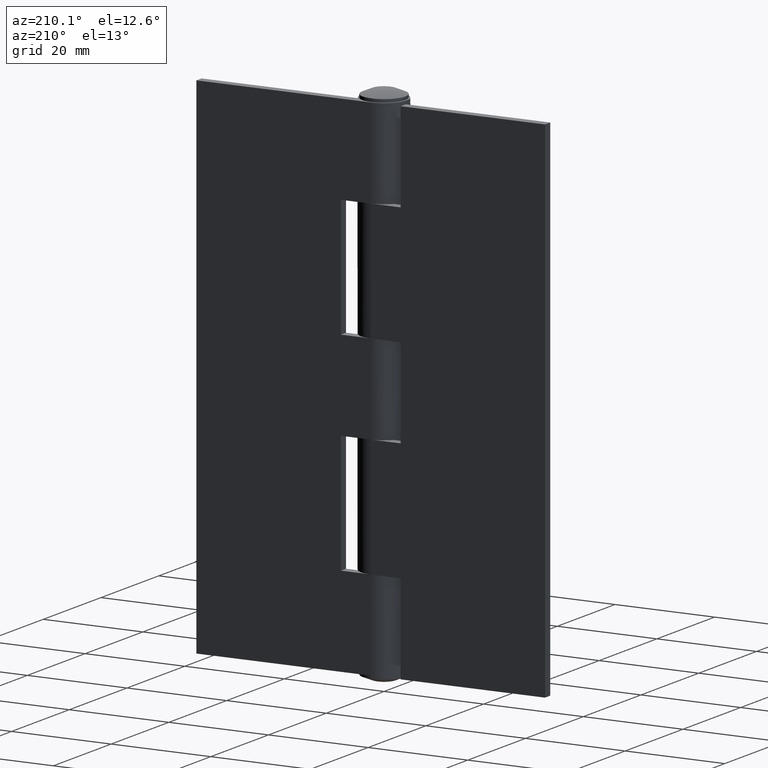
[diagram: clean part render]
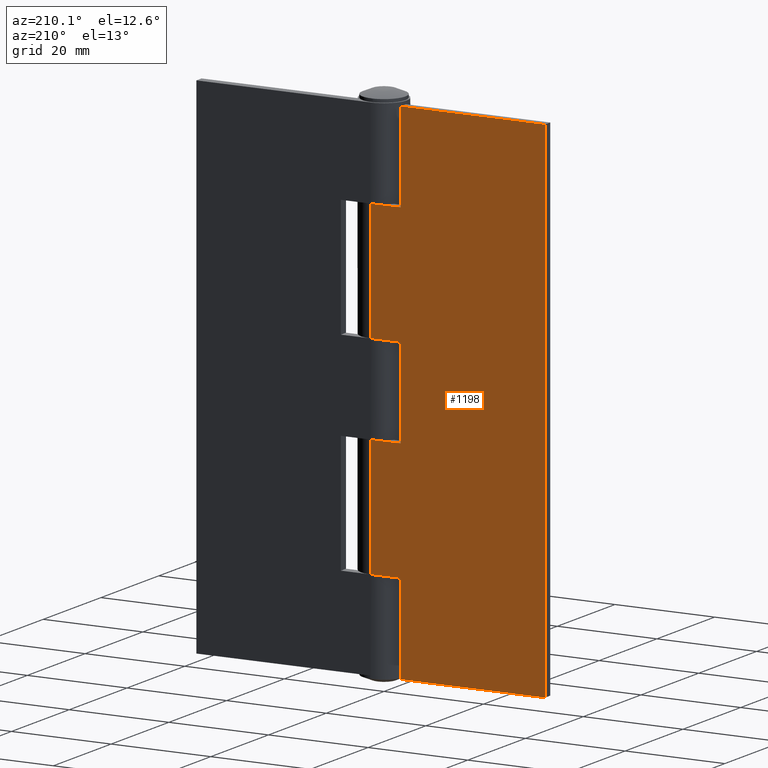
[diagram: same view with one face highlighted and labeled with its STEP entity id]
A machine part, auxiliary view. The second image highlights one B-rep face of the part: STEP entity #1198.
In plain terms, the highlighted face is a freeform B-spline surface patch.
Its self-contained STEP definition (entity closure, byte-faithful):
#439=CARTESIAN_POINT('',(-6.0,4.599998000000000,1.004803E-015));
#440=VERTEX_POINT('',#439);
#446=CARTESIAN_POINT('',(-6.0,4.599998000000000,18.0));
#447=VERTEX_POINT('',#446);
#448=CARTESIAN_POINT('',(-6.0,4.599998000000000,18.0));
#449=CARTESIAN_POINT('',(-6.0,4.599998000000000,1.004803E-015));
#450=QUASI_UNIFORM_CURVE('',1,(#448,#449),.UNSPECIFIED.,.F.,.U.);
#451=EDGE_CURVE('',#447,#440,#450,.T.);
#519=CARTESIAN_POINT('',(0.004289521649760,4.599998000000000,18.0));
#520=VERTEX_POINT('',#519);
#521=CARTESIAN_POINT('',(0.004289521649760,4.599998000000000,18.0));
#522=CARTESIAN_POINT('',(-6.0,4.599998000000000,18.0));
#523=QUASI_UNIFORM_CURVE('',1,(#521,#522),.UNSPECIFIED.,.F.,.U.);
#524=EDGE_CURVE('',#520,#447,#523,.T.);
#567=CARTESIAN_POINT('',(0.004289521649760,4.599998000000000,42.0));
#568=VERTEX_POINT('',#567);
#603=CARTESIAN_POINT('',(-6.0,4.599998000000000,42.0));
#604=VERTEX_POINT('',#603);
#605=CARTESIAN_POINT('',(0.004289521649760,4.599998000000000,42.0));
#606=CARTESIAN_POINT('',(-6.0,4.599998000000000,42.0));
#607=QUASI_UNIFORM_CURVE('',1,(#605,#606),.UNSPECIFIED.,.F.,.U.);
#608=EDGE_CURVE('',#568,#604,#607,.T.);
#667=CARTESIAN_POINT('',(0.004289521649760,4.599998000000000,60.0));
#668=VERTEX_POINT('',#667);
#748=CARTESIAN_POINT('',(-6.0,4.599998000000000,60.0));
#749=VERTEX_POINT('',#748);
#755=CARTESIAN_POINT('',(-6.0,4.599998000000000,60.0));
#756=CARTESIAN_POINT('',(0.004289521649760,4.599998000000000,60.0));
#757=QUASI_UNIFORM_CURVE('',1,(#755,#756),.UNSPECIFIED.,.F.,.U.);
#758=EDGE_CURVE('',#749,#668,#757,.T.);
#774=CARTESIAN_POINT('',(-6.0,4.599998000000000,42.0));
#775=CARTESIAN_POINT('',(-6.0,4.599998000000000,60.0));
#776=QUASI_UNIFORM_CURVE('',1,(#774,#775),.UNSPECIFIED.,.F.,.U.);
#777=EDGE_CURVE('',#604,#749,#776,.T.);
#797=CARTESIAN_POINT('',(-6.0,4.599998000000000,84.0));
#798=VERTEX_POINT('',#797);
#804=CARTESIAN_POINT('',(-6.0,4.599998000000000,102.0));
#805=VERTEX_POINT('',#804);
#806=CARTESIAN_POINT('',(-6.0,4.599998000000000,84.0));
#807=CARTESIAN_POINT('',(-6.0,4.599998000000000,102.0));
#808=QUASI_UNIFORM_CURVE('',1,(#806,#807),.UNSPECIFIED.,.F.,.U.);
#809=EDGE_CURVE('',#798,#805,#808,.T.);
#826=CARTESIAN_POINT('',(0.004289521649760,4.599998000000000,84.0));
#827=VERTEX_POINT('',#826);
#860=CARTESIAN_POINT('',(0.004289521649760,4.599998000000000,84.0));
#861=CARTESIAN_POINT('',(-6.0,4.599998000000000,84.0));
#862=QUASI_UNIFORM_CURVE('',1,(#860,#861),.UNSPECIFIED.,.F.,.U.);
#863=EDGE_CURVE('',#827,#798,#862,.T.);
#924=CARTESIAN_POINT('',(-35.0,4.599998000000000,102.0));
#925=VERTEX_POINT('',#924);
#926=CARTESIAN_POINT('',(-35.0,4.599998000000000,102.0));
#927=CARTESIAN_POINT('',(-6.0,4.599998000000000,102.0));
#928=QUASI_UNIFORM_CURVE('',1,(#926,#927),.UNSPECIFIED.,.F.,.U.);
#929=EDGE_CURVE('',#925,#805,#928,.T.);
#946=CARTESIAN_POINT('',(-35.0,4.599998000000000,0.0));
#947=VERTEX_POINT('',#946);
#959=CARTESIAN_POINT('',(-35.0,4.599998000000000,102.0));
#960=CARTESIAN_POINT('',(-35.0,4.599998000000000,0.0));
#961=QUASI_UNIFORM_CURVE('',1,(#959,#960),.UNSPECIFIED.,.F.,.U.);
#962=EDGE_CURVE('',#925,#947,#961,.T.);
#1043=CARTESIAN_POINT('',(0.004289521649760,4.599998000000000,84.0));
#1044=CARTESIAN_POINT('',(0.004289521649760,4.599998000000000,60.0));
#1045=QUASI_UNIFORM_CURVE('',1,(#1043,#1044),.UNSPECIFIED.,.F.,.U.);
#1046=EDGE_CURVE('',#827,#668,#1045,.T.);
#1058=CARTESIAN_POINT('',(-35.0,4.599998000000000,0.0));
#1059=CARTESIAN_POINT('',(-6.0,4.599998000000000,1.004803E-015));
#1060=QUASI_UNIFORM_CURVE('',1,(#1058,#1059),.UNSPECIFIED.,.F.,.U.);
#1061=EDGE_CURVE('',#947,#440,#1060,.T.);
#1170=CARTESIAN_POINT('',(0.004289521649760,4.599998000000000,42.0));
#1171=CARTESIAN_POINT('',(0.004289521649760,4.599998000000000,18.0));
#1172=QUASI_UNIFORM_CURVE('',1,(#1170,#1171),.UNSPECIFIED.,.F.,.U.);
#1173=EDGE_CURVE('',#568,#520,#1172,.T.);
#1179=CARTESIAN_POINT('',(-36.748464193761308,4.599998000000000,-5.094899802304204));
#1180=CARTESIAN_POINT('',(-36.748464193761308,4.599998000000000,107.094902538157400));
#1181=CARTESIAN_POINT('',(1.752754654299270,4.599998000000000,-5.094899802304204));
#1182=CARTESIAN_POINT('',(1.752754654299270,4.599998000000000,107.094902538157400));
#1183=B_SPLINE_SURFACE_WITH_KNOTS('',1,1,((#1179,#1181),(#1180,#1182)),.UNSPECIFIED.,.F.,.F.,.U.,(2,2),(2,2),(0.0,112.189802340461600),(0.0,38.501218848060567),.UNSPECIFIED.);
#1184=ORIENTED_EDGE('',*,*,#1173,.T.);
#1185=ORIENTED_EDGE('',*,*,#524,.T.);
#1186=ORIENTED_EDGE('',*,*,#451,.T.);
#1187=ORIENTED_EDGE('',*,*,#1061,.F.);
#1188=ORIENTED_EDGE('',*,*,#962,.F.);
#1189=ORIENTED_EDGE('',*,*,#929,.T.);
#1190=ORIENTED_EDGE('',*,*,#809,.F.);
#1191=ORIENTED_EDGE('',*,*,#863,.F.);
#1192=ORIENTED_EDGE('',*,*,#1046,.T.);
#1193=ORIENTED_EDGE('',*,*,#758,.F.);
#1194=ORIENTED_EDGE('',*,*,#777,.F.);
#1195=ORIENTED_EDGE('',*,*,#608,.F.);
#1196=EDGE_LOOP('',(#1184,#1185,#1186,#1187,#1188,#1189,#1190,#1191,#1192,#1193,#1194,#1195));
#1197=FACE_OUTER_BOUND('',#1196,.T.);
#1198=ADVANCED_FACE('',(#1197),#1183,.T.);